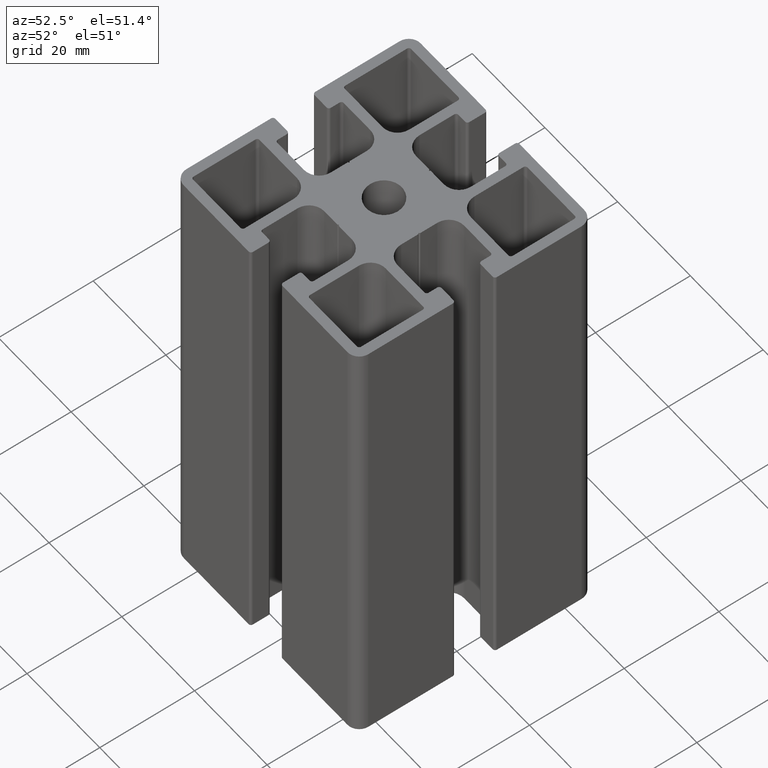
[diagram: clean part render]
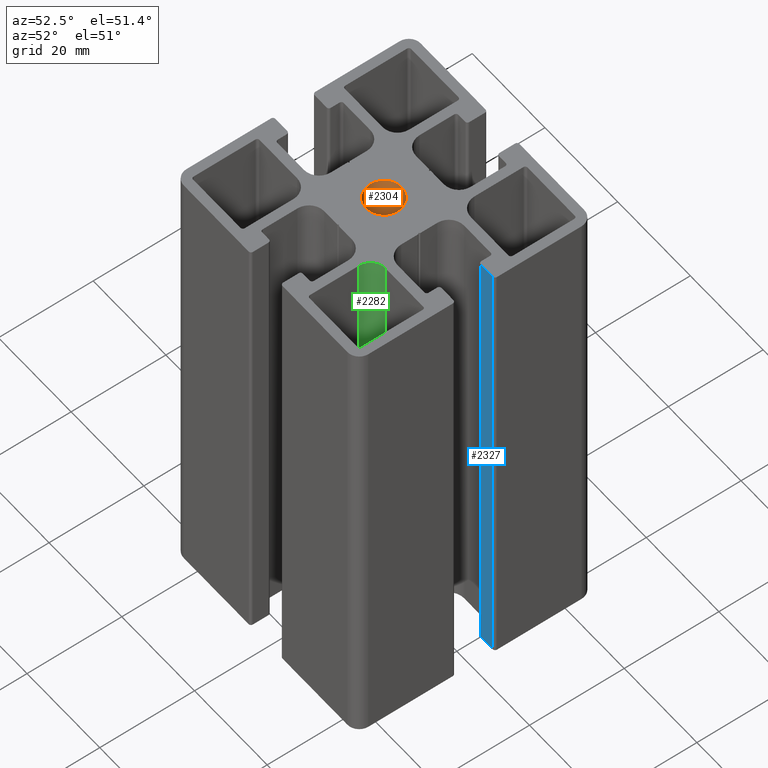
[diagram: same view with three faces highlighted in distinct colors, each labeled with its STEP entity id]
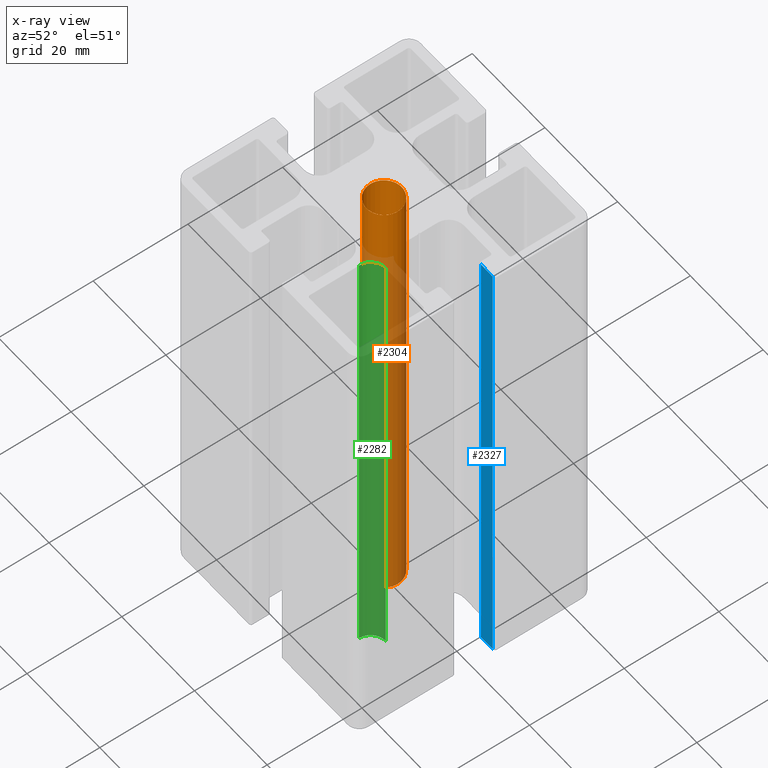
[diagram: x-ray of the same camera — body ghosted, the three highlighted faces saturated]
A machine part, auxiliary view with three faces highlighted in distinct colors.
The next image is the same camera in x-ray (body ghosted, the three faces saturated) — at least one of them is partly hidden behind the body in this view.
Their STEP definitions:

[orange] entity #2304 — the highlighted cylindrical surface (bore or boss wall) has radius 3.735 mm, axis along (0, 0, 1).
#15=FACE_BOUND('',#244,.T.);
#124=FACE_OUTER_BOUND('',#243,.T.);
#243=EDGE_LOOP('',(#1647));
#244=EDGE_LOOP('',(#1648));
#861=CIRCLE('',#2458,3.735);
#862=CIRCLE('',#2459,3.735);
#999=VERTEX_POINT('',#3508);
#1000=VERTEX_POINT('',#3510);
#1265=EDGE_CURVE('',#999,#999,#861,.T.);
#1266=EDGE_CURVE('',#1000,#1000,#862,.T.);
#1647=ORIENTED_EDGE('',*,*,#1265,.F.);
#1648=ORIENTED_EDGE('',*,*,#1266,.F.);
#2235=CYLINDRICAL_SURFACE('',#2457,3.735);
#2304=ADVANCED_FACE('',(#124,#15),#2235,.F.);
#2457=AXIS2_PLACEMENT_3D('',#3507,#2812,#2813);
#2458=AXIS2_PLACEMENT_3D('',#3509,#2814,#2815);
#2459=AXIS2_PLACEMENT_3D('',#3511,#2816,#2817);
#2812=DIRECTION('center_axis',(0.,0.,1.));
#2813=DIRECTION('ref_axis',(-1.,0.,0.));
#2814=DIRECTION('center_axis',(0.,0.,-1.));
#2815=DIRECTION('ref_axis',(-1.,0.,0.));
#2816=DIRECTION('center_axis',(0.,0.,1.));
#2817=DIRECTION('ref_axis',(-1.,0.,0.));
#3507=CARTESIAN_POINT('Origin',(0.,0.,0.));
#3508=CARTESIAN_POINT('',(3.735,4.57405579481536E-16,100.));
#3509=CARTESIAN_POINT('Origin',(0.,0.,100.));
#3510=CARTESIAN_POINT('',(3.735,4.57405579481536E-16,0.));
#3511=CARTESIAN_POINT('Origin',(0.,0.,0.));

[blue] entity #2327 — the highlighted planar face has unit normal (-0, -1, 0).
#54=PLANE('',#2502);
#147=FACE_OUTER_BOUND('',#267,.T.);
#267=EDGE_LOOP('',(#1737,#1738,#1739,#1740));
#451=LINE('',#3646,#695);
#452=LINE('',#3649,#696);
#453=LINE('',#3651,#697);
#454=LINE('',#3652,#698);
#695=VECTOR('',#2948,100.);
#696=VECTOR('',#2951,3.29999999999997);
#697=VECTOR('',#2952,3.29999999999997);
#698=VECTOR('',#2953,100.);
#1045=VERTEX_POINT('',#3642);
#1046=VERTEX_POINT('',#3644);
#1047=VERTEX_POINT('',#3648);
#1048=VERTEX_POINT('',#3650);
#1333=EDGE_CURVE('',#1045,#1046,#451,.T.);
#1334=EDGE_CURVE('',#1047,#1045,#452,.T.);
#1335=EDGE_CURVE('',#1048,#1046,#453,.T.);
#1336=EDGE_CURVE('',#1047,#1048,#454,.T.);
#1737=ORIENTED_EDGE('',*,*,#1334,.T.);
#1738=ORIENTED_EDGE('',*,*,#1333,.T.);
#1739=ORIENTED_EDGE('',*,*,#1335,.F.);
#1740=ORIENTED_EDGE('',*,*,#1336,.F.);
#2327=ADVANCED_FACE('',(#147),#54,.T.);
#2502=AXIS2_PLACEMENT_3D('',#3647,#2949,#2950);
#2948=DIRECTION('',(0.,0.,1.));
#2949=DIRECTION('center_axis',(-1.34572487833354E-14,-1.,0.));
#2950=DIRECTION('ref_axis',(1.,-1.35003119794419E-14,0.));
#2951=DIRECTION('',(1.,-1.34572487833354E-14,0.));
#2952=DIRECTION('',(1.,-1.34572487833354E-14,0.));
#2953=DIRECTION('',(0.,0.,1.));
#3642=CARTESIAN_POINT('',(24.5000000000001,4.15000000000148,0.));
#3644=CARTESIAN_POINT('',(24.5000000000001,4.15000000000148,100.));
#3646=CARTESIAN_POINT('',(24.5000000000001,4.15000000000148,0.));
#3647=CARTESIAN_POINT('Origin',(21.2000000000001,4.15000000000153,0.));
#3648=CARTESIAN_POINT('',(21.2000000000001,4.15000000000153,0.));
#3649=CARTESIAN_POINT('',(21.2000000000001,4.15000000000153,0.));
#3650=CARTESIAN_POINT('',(21.2000000000001,4.15000000000153,100.));
#3651=CARTESIAN_POINT('',(21.2000000000001,4.15000000000153,100.));
#3652=CARTESIAN_POINT('',(21.2000000000001,4.15000000000153,0.));

[green] entity #2282 — the highlighted cylindrical surface (edge-blend (fillet) strip) has radius 3.2 mm, axis along (0, 0, 1).
#102=FACE_OUTER_BOUND('',#221,.T.);
#221=EDGE_LOOP('',(#1559,#1560,#1561,#1562));
#360=LINE('',#3376,#604);
#362=LINE('',#3382,#606);
#604=VECTOR('',#2679,100.);
#606=VECTOR('',#2685,100.);
#839=CIRCLE('',#2414,3.20000000000004);
#840=CIRCLE('',#2415,3.20000000000004);
#955=VERTEX_POINT('',#3373);
#956=VERTEX_POINT('',#3375);
#957=VERTEX_POINT('',#3379);
#958=VERTEX_POINT('',#3381);
#1198=EDGE_CURVE('',#955,#956,#360,.T.);
#1200=EDGE_CURVE('',#957,#955,#839,.T.);
#1201=EDGE_CURVE('',#957,#958,#362,.T.);
#1202=EDGE_CURVE('',#956,#958,#840,.T.);
#1559=ORIENTED_EDGE('',*,*,#1200,.F.);
#1560=ORIENTED_EDGE('',*,*,#1201,.T.);
#1561=ORIENTED_EDGE('',*,*,#1202,.F.);
#1562=ORIENTED_EDGE('',*,*,#1198,.F.);
#2224=CYLINDRICAL_SURFACE('',#2413,3.20000000000004);
#2282=ADVANCED_FACE('',(#102),#2224,.F.);
#2413=AXIS2_PLACEMENT_3D('',#3378,#2681,#2682);
#2414=AXIS2_PLACEMENT_3D('',#3380,#2683,#2684);
#2415=AXIS2_PLACEMENT_3D('',#3383,#2686,#2687);
#2679=DIRECTION('',(0.,0.,1.));
#2681=DIRECTION('center_axis',(0.,0.,1.));
#2682=DIRECTION('ref_axis',(-7.771561172376E-14,-1.,0.));
#2683=DIRECTION('center_axis',(0.,0.,1.));
#2684=DIRECTION('ref_axis',(-7.771561172376E-14,-1.,0.));
#2685=DIRECTION('',(0.,0.,1.));
#2686=DIRECTION('center_axis',(0.,0.,-1.));
#2687=DIRECTION('ref_axis',(-7.771561172376E-14,-1.,0.));
#3373=CARTESIAN_POINT('',(8.99999999999845,-12.2000000000022,0.));
#3375=CARTESIAN_POINT('',(8.99999999999845,-12.2000000000022,100.));
#3376=CARTESIAN_POINT('',(8.99999999999845,-12.2000000000022,0.));
#3378=CARTESIAN_POINT('Origin',(12.1999999999985,-12.2000000000022,0.));
#3379=CARTESIAN_POINT('',(12.1999999999987,-9.00000000000219,0.));
#3380=CARTESIAN_POINT('Origin',(12.1999999999985,-12.2000000000022,0.));
#3381=CARTESIAN_POINT('',(12.1999999999987,-9.00000000000219,100.));
#3382=CARTESIAN_POINT('',(12.1999999999987,-9.00000000000219,0.));
#3383=CARTESIAN_POINT('Origin',(12.1999999999985,-12.2000000000022,100.));